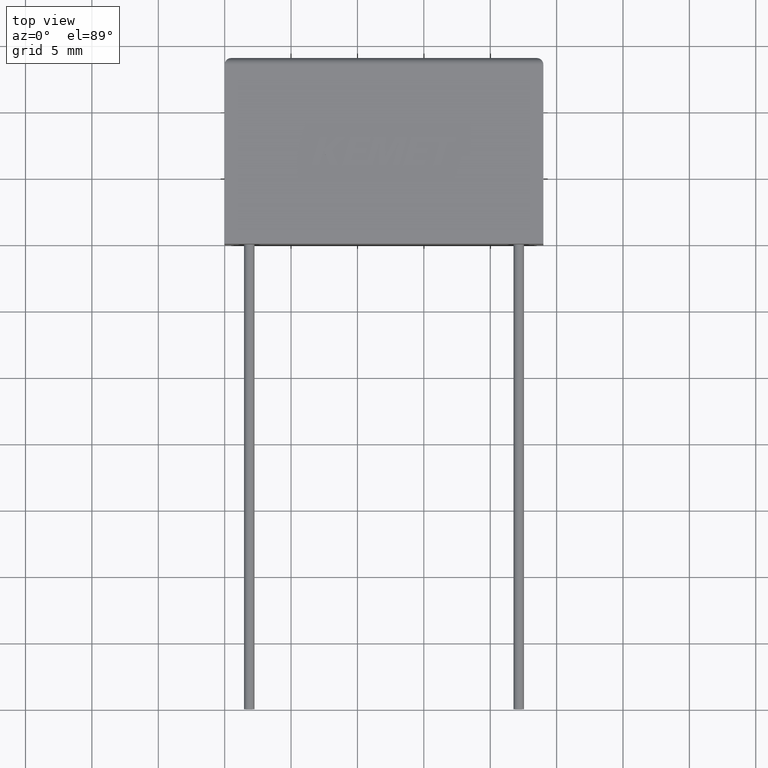
[diagram: clean part render]
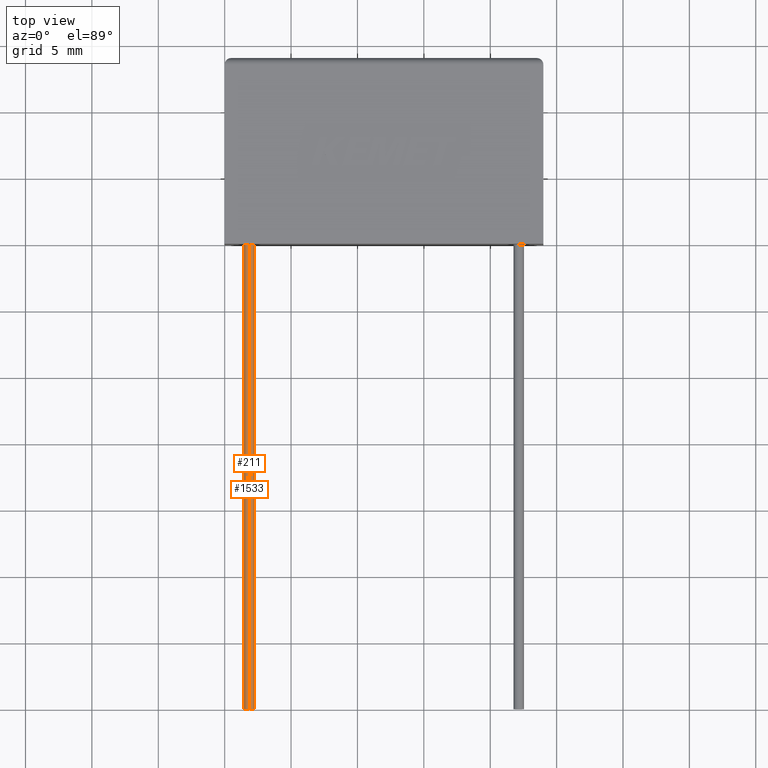
[diagram: same view with one multi-face feature highlighted, each face labeled with its STEP entity id]
A machine part, top view. The highlighted faces form ONE feature: a constant-radius fillet chain: 2 tangent blend faces with common blend radius 0.4 mm. The faces share edges in the B-rep.
Their STEP definitions:
[1] entity #1533 (Cylinder):
#150 = DIRECTION ( 'NONE',  ( -0.0000000000000000000, -1.000000000000000000, -0.0000000000000000000 ) ) ;
#186 = AXIS2_PLACEMENT_3D ( 'NONE', #325, #1097, #1860 ) ;
#204 = VERTEX_POINT ( 'NONE', #1864 ) ;
#247 = EDGE_CURVE ( 'NONE', #1383, #204, #2467, .T. ) ;
#291 = ORIENTED_EDGE ( 'NONE', *, *, #2230, .T. ) ;
#325 = CARTESIAN_POINT ( 'NONE',  ( 1.849999999999999200, -35.00000000000000000, 3.800000000000000300 ) ) ;
#333 = ORIENTED_EDGE ( 'NONE', *, *, #247, .F. ) ;
#363 = VERTEX_POINT ( 'NONE', #2468 ) ;
#385 = LINE ( 'NONE', #766, #1069 ) ;
#423 = ORIENTED_EDGE ( 'NONE', *, *, #2260, .F. ) ;
#519 = CARTESIAN_POINT ( 'NONE',  ( 1.849999999999999200, 0.0000000000000000000, 3.800000000000000300 ) ) ;
#533 = DIRECTION ( 'NONE',  ( 0.0000000000000000000, -1.000000000000000000, 0.0000000000000000000 ) ) ;
#548 = VECTOR ( 'NONE', #2031, 1000.000000000000000 ) ;
#592 = AXIS2_PLACEMENT_3D ( 'NONE', #1664, #533, #1137 ) ;
#766 = CARTESIAN_POINT ( 'NONE',  ( 1.849999999999999200, -35.00000000000000000, 4.200000000000000200 ) ) ;
#768 = AXIS2_PLACEMENT_3D ( 'NONE', #519, #150, #1113 ) ;
#922 = CIRCLE ( 'NONE', #768, 0.4000000000000001900 ) ;
#1069 = VECTOR ( 'NONE', #1147, 1000.000000000000000 ) ;
#1097 = DIRECTION ( 'NONE',  ( -0.0000000000000000000, 1.000000000000000000, -0.0000000000000000000 ) ) ;
#1100 = EDGE_LOOP ( 'NONE', ( #423, #333, #291, #1581 ) ) ;
#1113 = DIRECTION ( 'NONE',  ( 0.0000000000000000000, 0.0000000000000000000, 1.000000000000000000 ) ) ;
#1137 = DIRECTION ( 'NONE',  ( 0.0000000000000000000, 0.0000000000000000000, -1.000000000000000000 ) ) ;
#1147 = DIRECTION ( 'NONE',  ( -0.0000000000000000000, 1.000000000000000000, -0.0000000000000000000 ) ) ;
#1310 = CARTESIAN_POINT ( 'NONE',  ( 1.849999999999999200, 0.0000000000000000000, 3.399999999999999900 ) ) ;
#1318 = CYLINDRICAL_SURFACE ( 'NONE', #186, 0.4000000000000001900 ) ;
#1383 = VERTEX_POINT ( 'NONE', #1605 ) ;
#1522 = EDGE_CURVE ( 'NONE', #363, #2387, #922, .T. ) ;
#1533 = ADVANCED_FACE ( 'NONE', ( #2164 ), #1318, .T. ) ;
#1581 = ORIENTED_EDGE ( 'NONE', *, *, #1522, .T. ) ;
#1605 = CARTESIAN_POINT ( 'NONE',  ( 1.849999999999999200, -35.00000000000000000, 4.200000000000000200 ) ) ;
#1664 = CARTESIAN_POINT ( 'NONE',  ( 1.849999999999999200, -35.00000000000000000, 3.800000000000000300 ) ) ;
#1856 = CARTESIAN_POINT ( 'NONE',  ( 1.849999999999999200, -35.00000000000000000, 3.399999999999999900 ) ) ;
#1860 = DIRECTION ( 'NONE',  ( 0.0000000000000000000, 0.0000000000000000000, 1.000000000000000000 ) ) ;
#1864 = CARTESIAN_POINT ( 'NONE',  ( 1.849999999999999200, -35.00000000000000000, 3.399999999999999900 ) ) ;
#2031 = DIRECTION ( 'NONE',  ( -0.0000000000000000000, 1.000000000000000000, -0.0000000000000000000 ) ) ;
#2164 = FACE_OUTER_BOUND ( 'NONE', #1100, .T. ) ;
#2230 = EDGE_CURVE ( 'NONE', #1383, #363, #385, .T. ) ;
#2260 = EDGE_CURVE ( 'NONE', #204, #2387, #2332, .T. ) ;
#2332 = LINE ( 'NONE', #1856, #548 ) ;
#2387 = VERTEX_POINT ( 'NONE', #1310 ) ;
#2467 = CIRCLE ( 'NONE', #592, 0.4000000000000006300 ) ;
#2468 = CARTESIAN_POINT ( 'NONE',  ( 1.849999999999999200, 0.0000000000000000000, 4.200000000000000200 ) ) ;
[2] entity #211 (Cylinder):
#40 = DIRECTION ( 'NONE',  ( 0.0000000000000000000, 0.0000000000000000000, 1.000000000000000000 ) ) ;
#50 = AXIS2_PLACEMENT_3D ( 'NONE', #953, #172, #40 ) ;
#172 = DIRECTION ( 'NONE',  ( -0.0000000000000000000, -1.000000000000000000, -0.0000000000000000000 ) ) ;
#204 = VERTEX_POINT ( 'NONE', #1864 ) ;
#211 = ADVANCED_FACE ( 'NONE', ( #1511 ), #1027, .T. ) ;
#363 = VERTEX_POINT ( 'NONE', #2468 ) ;
#365 = ORIENTED_EDGE ( 'NONE', *, *, #2230, .F. ) ;
#385 = LINE ( 'NONE', #766, #1069 ) ;
#413 = ORIENTED_EDGE ( 'NONE', *, *, #2260, .T. ) ;
#491 = DIRECTION ( 'NONE',  ( 0.0000000000000000000, -1.000000000000000000, 0.0000000000000000000 ) ) ;
#534 = AXIS2_PLACEMENT_3D ( 'NONE', #1583, #491, #2373 ) ;
#548 = VECTOR ( 'NONE', #2031, 1000.000000000000000 ) ;
#571 = DIRECTION ( 'NONE',  ( -0.0000000000000000000, 1.000000000000000000, -0.0000000000000000000 ) ) ;
#735 = ORIENTED_EDGE ( 'NONE', *, *, #1977, .T. ) ;
#738 = CIRCLE ( 'NONE', #50, 0.4000000000000001900 ) ;
#766 = CARTESIAN_POINT ( 'NONE',  ( 1.849999999999999200, -35.00000000000000000, 4.200000000000000200 ) ) ;
#827 = CIRCLE ( 'NONE', #534, 0.4000000000000006300 ) ;
#949 = CARTESIAN_POINT ( 'NONE',  ( 1.849999999999999200, -35.00000000000000000, 3.800000000000000300 ) ) ;
#953 = CARTESIAN_POINT ( 'NONE',  ( 1.849999999999999200, 0.0000000000000000000, 3.800000000000000300 ) ) ;
#1027 = CYLINDRICAL_SURFACE ( 'NONE', #2070, 0.4000000000000001900 ) ;
#1069 = VECTOR ( 'NONE', #1147, 1000.000000000000000 ) ;
#1074 = EDGE_LOOP ( 'NONE', ( #2359, #413, #735, #365 ) ) ;
#1147 = DIRECTION ( 'NONE',  ( -0.0000000000000000000, 1.000000000000000000, -0.0000000000000000000 ) ) ;
#1310 = CARTESIAN_POINT ( 'NONE',  ( 1.849999999999999200, 0.0000000000000000000, 3.399999999999999900 ) ) ;
#1383 = VERTEX_POINT ( 'NONE', #1605 ) ;
#1511 = FACE_OUTER_BOUND ( 'NONE', #1074, .T. ) ;
#1583 = CARTESIAN_POINT ( 'NONE',  ( 1.849999999999999200, -35.00000000000000000, 3.800000000000000300 ) ) ;
#1605 = CARTESIAN_POINT ( 'NONE',  ( 1.849999999999999200, -35.00000000000000000, 4.200000000000000200 ) ) ;
#1856 = CARTESIAN_POINT ( 'NONE',  ( 1.849999999999999200, -35.00000000000000000, 3.399999999999999900 ) ) ;
#1864 = CARTESIAN_POINT ( 'NONE',  ( 1.849999999999999200, -35.00000000000000000, 3.399999999999999900 ) ) ;
#1912 = EDGE_CURVE ( 'NONE', #204, #1383, #827, .T. ) ;
#1977 = EDGE_CURVE ( 'NONE', #2387, #363, #738, .T. ) ;
#2031 = DIRECTION ( 'NONE',  ( -0.0000000000000000000, 1.000000000000000000, -0.0000000000000000000 ) ) ;
#2070 = AXIS2_PLACEMENT_3D ( 'NONE', #949, #571, #2272 ) ;
#2230 = EDGE_CURVE ( 'NONE', #1383, #363, #385, .T. ) ;
#2260 = EDGE_CURVE ( 'NONE', #204, #2387, #2332, .T. ) ;
#2272 = DIRECTION ( 'NONE',  ( 0.0000000000000000000, 0.0000000000000000000, 1.000000000000000000 ) ) ;
#2332 = LINE ( 'NONE', #1856, #548 ) ;
#2359 = ORIENTED_EDGE ( 'NONE', *, *, #1912, .F. ) ;
#2373 = DIRECTION ( 'NONE',  ( 0.0000000000000000000, 0.0000000000000000000, -1.000000000000000000 ) ) ;
#2387 = VERTEX_POINT ( 'NONE', #1310 ) ;
#2468 = CARTESIAN_POINT ( 'NONE',  ( 1.849999999999999200, 0.0000000000000000000, 4.200000000000000200 ) ) ;